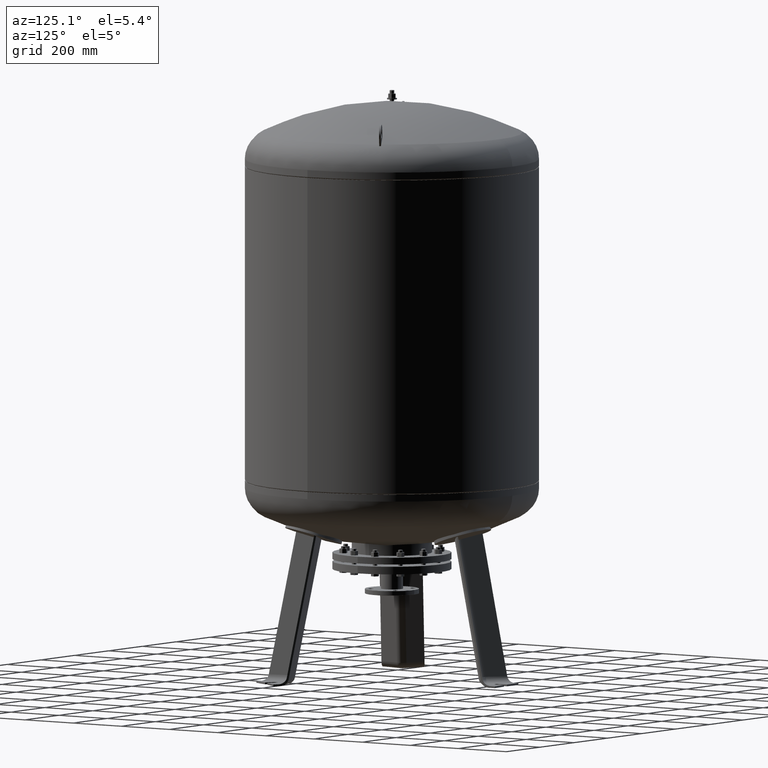
[diagram: clean part render]
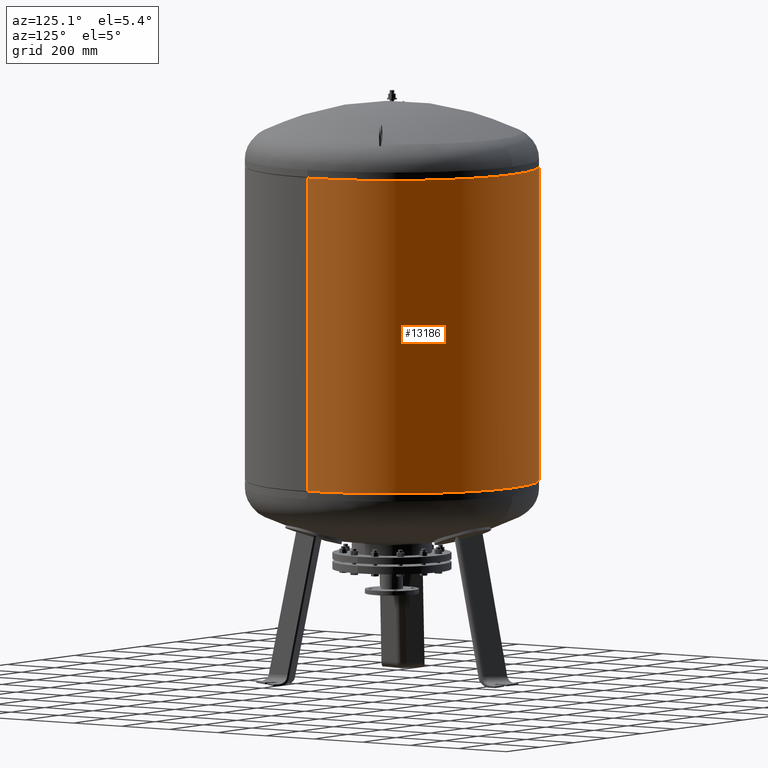
[diagram: same view with one face highlighted and labeled with its STEP entity id]
A machine part, auxiliary view. The second image highlights one B-rep face of the part: STEP entity #13186.
In plain terms, the highlighted cylindrical surface (partial cylindrical patch) has radius 500 mm, axis along (0, 0, 1).
Its self-contained STEP definition (entity closure, byte-faithful):
#13066=CARTESIAN_POINT('',(500.000000000000570,0.0,1748.500000000000000));
#13067=VERTEX_POINT('',#13066);
#13068=CARTESIAN_POINT('',(499.999999999999890,0.0,679.500000000000000));
#13069=VERTEX_POINT('',#13068);
#13070=CARTESIAN_POINT('',(500.000000000000570,0.0,1748.500000000000000));
#13071=DIRECTION('',(0.0,0.0,-1.0));
#13072=VECTOR('',#13071,1069.0);
#13073=LINE('',#13070,#13072);
#13074=EDGE_CURVE('',#13067,#13069,#13073,.T.);
#13076=CARTESIAN_POINT('',(-500.000000000000570,-6.123032E-014,1748.500000000000000));
#13077=VERTEX_POINT('',#13076);
#13085=CARTESIAN_POINT('',(-499.999999999999890,-6.123032E-014,679.500000000000000));
#13086=VERTEX_POINT('',#13085);
#13087=CARTESIAN_POINT('',(-500.000000000000570,-6.123032E-014,1748.500000000000000));
#13088=DIRECTION('',(0.0,0.0,-1.0));
#13089=VECTOR('',#13088,1069.0);
#13090=LINE('',#13087,#13089);
#13091=EDGE_CURVE('',#13077,#13086,#13090,.T.);
#13159=CARTESIAN_POINT('',(-1.659482E-014,0.0,679.500000000000000));
#13160=DIRECTION('',(0.0,0.0,1.0));
#13161=DIRECTION('',(1.0,0.0,0.0));
#13162=AXIS2_PLACEMENT_3D('',#13159,#13160,#13161);
#13163=CIRCLE('',#13162,499.999999999999890);
#13164=EDGE_CURVE('',#13069,#13086,#13163,.T.);
#13169=CARTESIAN_POINT('',(8.297411E-015,0.0,1481.250000000000000));
#13170=DIRECTION('',(3.104738E-017,0.0,1.0));
#13171=DIRECTION('',(1.0,0.0,0.0));
#13172=AXIS2_PLACEMENT_3D('',#13169,#13170,#13171);
#13173=CYLINDRICAL_SURFACE('',#13172,500.000000000000570);
#13174=ORIENTED_EDGE('',*,*,#13074,.T.);
#13175=ORIENTED_EDGE('',*,*,#13164,.T.);
#13176=ORIENTED_EDGE('',*,*,#13091,.F.);
#13177=CARTESIAN_POINT('',(1.659482E-014,0.0,1748.500000000000000));
#13178=DIRECTION('',(0.0,0.0,1.0));
#13179=DIRECTION('',(1.0,0.0,0.0));
#13180=AXIS2_PLACEMENT_3D('',#13177,#13178,#13179);
#13181=CIRCLE('',#13180,500.000000000000570);
#13182=EDGE_CURVE('',#13067,#13077,#13181,.T.);
#13183=ORIENTED_EDGE('',*,*,#13182,.F.);
#13184=EDGE_LOOP('',(#13174,#13175,#13176,#13183));
#13185=FACE_OUTER_BOUND('',#13184,.T.);
#13186=ADVANCED_FACE('',(#13185),#13173,.T.);